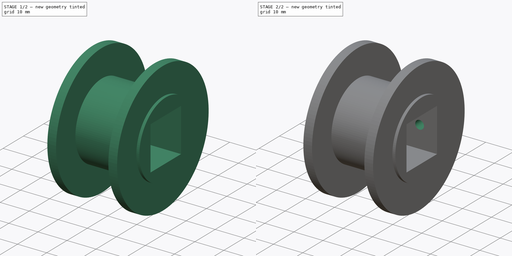
[diagram: build sequence overview — one tinted view per stage of 2, left to right]
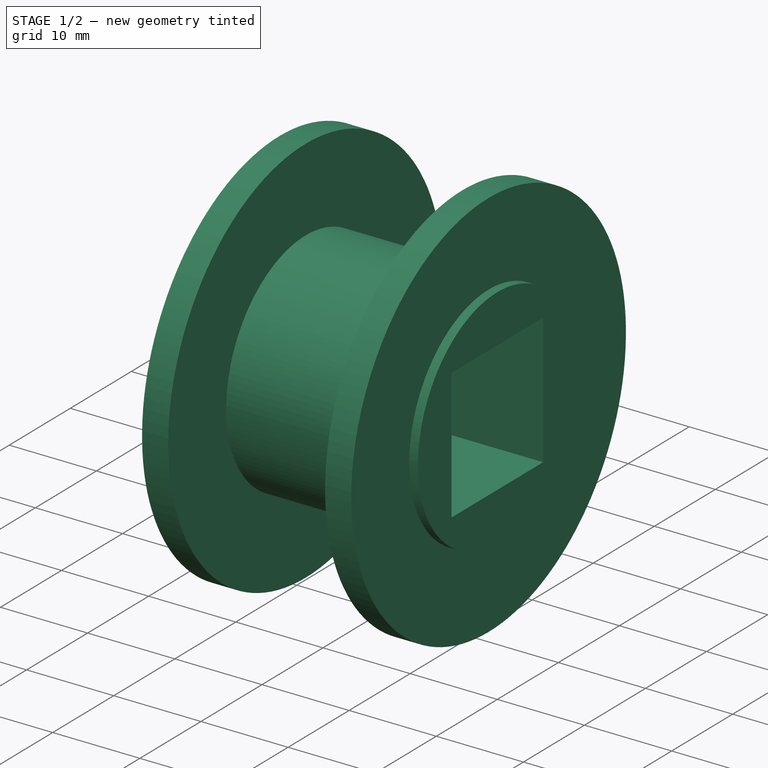
[diagram: stage 1 of 2 — iso view after this stage's code; geometry added in this stage tinted green]
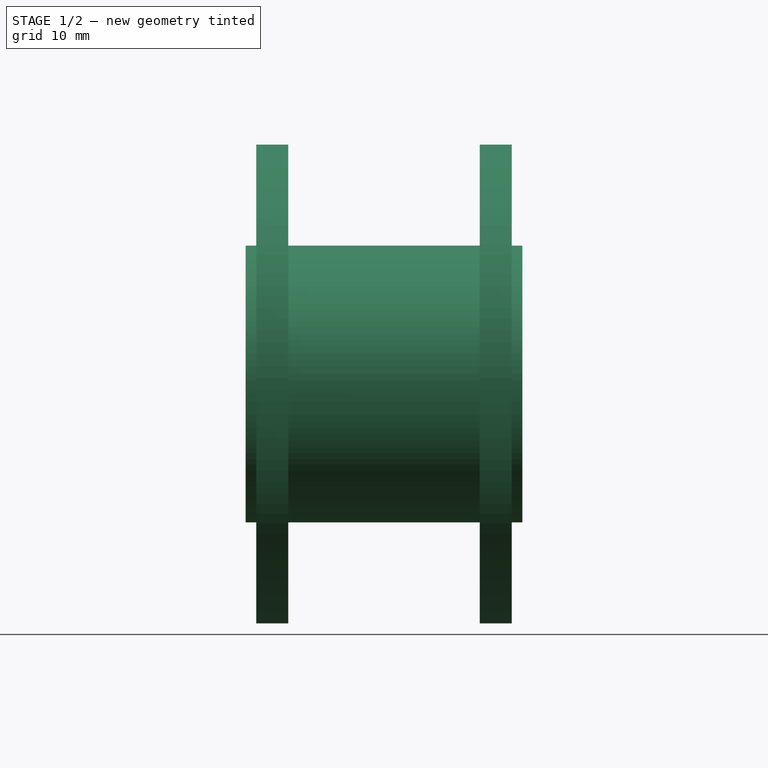
[diagram: stage 1 of 2 — front view after this stage's code; geometry added in this stage tinted green]
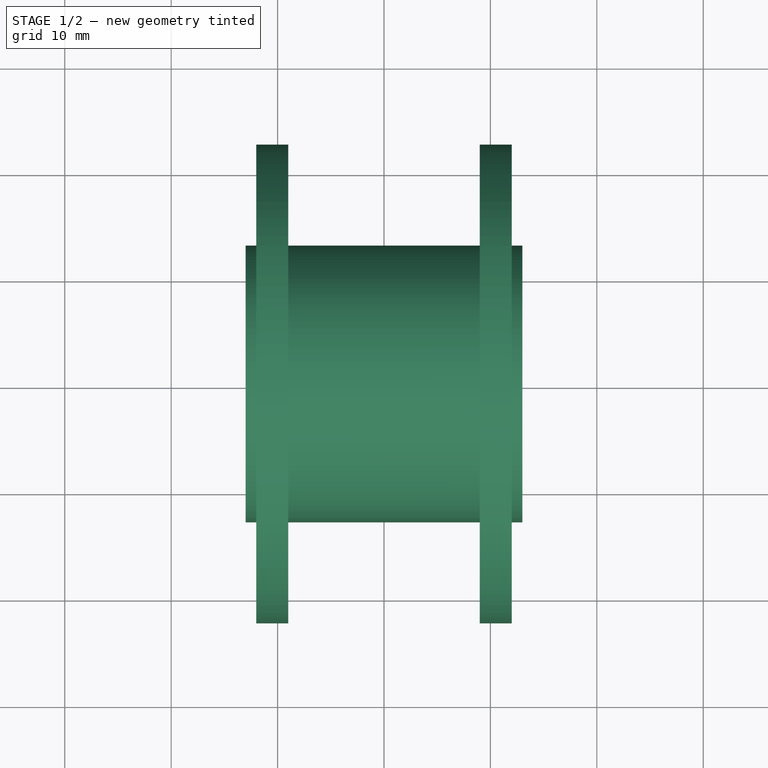
[diagram: stage 1 of 2 — top view after this stage's code; geometry added in this stage tinted green]
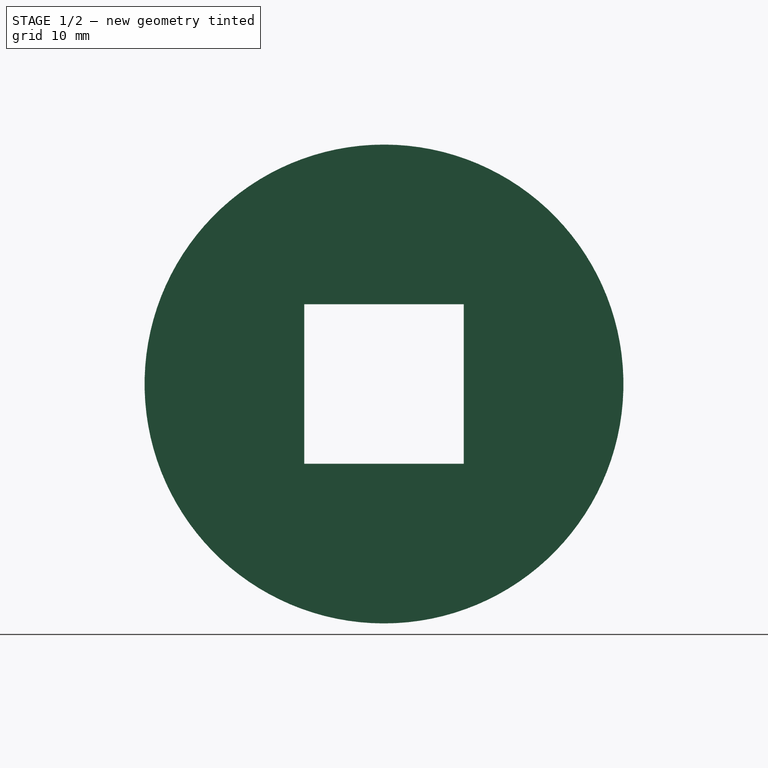
[diagram: stage 1 of 2 — right view after this stage's code; geometry added in this stage tinted green]
FCSTD DOCUMENT  (FreeCAD 0.16RUnknown)
Label: carrete
License: All rights reserved
LicenseURL: http://en.wikipedia.org/wiki/All_rights_reserved
objects: Sketcher::SketchObject×3, PartDesign::Pocket×2, PartDesign::Revolution×1
note: 9 computed .brp shape members not serialized (recipe doc carries the construction recipe); baked Part::Feature solids carry a one-line shape summary decoded from their .brp

FEATURE [Sketcher::SketchObject] Sketch
  Placement = pos=(0,0,0) rot=(-1,0,0;4.71239rad)
  sketch-geometry (12):
    g0: LineSegment StartX=-12 StartY=-13 StartZ=0 EndX=-12 EndY=-22.5 EndZ=0
    g1: LineSegment StartX=-12 StartY=-22.5 StartZ=0 EndX=-9 EndY=-22.5 EndZ=0
    g2: LineSegment StartX=-9 StartY=-22.5 StartZ=0 EndX=-9 EndY=-13 EndZ=0
    g3: LineSegment StartX=-9 StartY=-13 StartZ=0 EndX=9 EndY=-13 EndZ=0
    g4: LineSegment StartX=9 StartY=-13 StartZ=0 EndX=9 EndY=-22.5 EndZ=0
    g5: LineSegment StartX=9 StartY=-22.5 StartZ=0 EndX=12 EndY=-22.5 EndZ=0
    g6: LineSegment StartX=12 StartY=-22.5 StartZ=0 EndX=12 EndY=-13 EndZ=0
    g7: LineSegment StartX=12 StartY=-13 StartZ=0 EndX=13 EndY=-13 EndZ=0
    g8: LineSegment StartX=13 StartY=-13 StartZ=0 EndX=13 EndY=0 EndZ=0
    g9: LineSegment StartX=13 StartY=0 StartZ=0 EndX=-13 EndY=0 EndZ=0
    g10: LineSegment StartX=-13 StartY=0 StartZ=0 EndX=-13 EndY=-13 EndZ=0
    g11: LineSegment StartX=-13 StartY=-13 StartZ=0 EndX=-12 EndY=-13 EndZ=0
  constraints (36):
    c: Vertical(g0)
    c: Coincident(g0,g1)
    c: Coincident(g1,g2)
    c: Vertical(g2)
    c: Coincident(g2,g3)
    c: Horizontal(g3)
    c: Coincident(g3,g4)
    c: Vertical(g4)
    c: Coincident(g4,g5)
    c: Coincident(g5,g6)
    c: Vertical(g6)
    c: Coincident(g6,g7)
    c: Horizontal(g7)
    c: Coincident(g7,g8)
    c: PointOnObject(g8,g-1)
    c: Vertical(g8)
    c: Coincident(g8,g9)
    c: PointOnObject(g9,g-1)
    c: Coincident(g9,g10)
    c: Vertical(g10)
    c: Coincident(g10,g11)
    c: Coincident(g11,g0)
    c: Symmetric(g3,g2,g-2)
    c: Horizontal(g11)
    c: Horizontal(g1)
    c: DistanceX(g9,g9) = 26
    c: Symmetric(g8,g9,g-2)
    c: DistanceX(g2,g3) = 18
    c: DistanceY(g10,g9) = 13
    c: Horizontal(g5)
    c: DistanceY(g1,g-1) = 22.5
    c: DistanceY(g5,g-1) = 22.5
    c: DistanceX(g11,g11) = 1
    c: DistanceX(g7,g7) = 1
    c: DistanceY(g0,g2) = 0
    c: DistanceY(g3,g6) = 0
FEATURE [PartDesign::Revolution] Revolution
  Angle = 360
  Axis = (1,0,0)
  Base = (0,0,0)
  Placement = pos=(0,0,0) rot=(-1,0,0;4.71239rad)
  ReferenceAxis = -> Sketch [H_Axis]
  Reversed = true
  Sketch = -> Sketch
FEATURE [Sketcher::SketchObject] Sketch001
  Placement = pos=(13,0,0) rot=(0.707107,0,0.707107;3.14159rad)
  Support = -> Revolution [Face9]
  sketch-geometry (4):
    g0: LineSegment StartX=-7.5 StartY=7.5 StartZ=0 EndX=7.5 EndY=7.5 EndZ=0
    g1: LineSegment StartX=7.5 StartY=7.5 StartZ=0 EndX=7.5 EndY=-7.5 EndZ=0
    g2: LineSegment StartX=7.5 StartY=-7.5 StartZ=0 EndX=-7.5 EndY=-7.5 EndZ=0
    g3: LineSegment StartX=-7.5 StartY=-7.5 StartZ=0 EndX=-7.5 EndY=7.5 EndZ=0
  constraints (12):
    c: Coincident(g0,g1)
    c: Coincident(g1,g2)
    c: Coincident(g2,g3)
    c: Coincident(g3,g0)
    c: Horizontal(g0)
    c: Horizontal(g2)
    c: Vertical(g1)
    c: Vertical(g3)
    c: Symmetric(g1,g2,g-2)
    c: Symmetric(g1,g0,g-1)
    c: DistanceX(g0,g0) = 15
    c: DistanceY(g3,g3) = 15
FEATURE [PartDesign::Pocket] Pocket
  Length = 5
  Placement = pos=(0,0,0) rot=(-1,0,0;4.71239rad)
  Sketch = -> Sketch001
  Type = 1
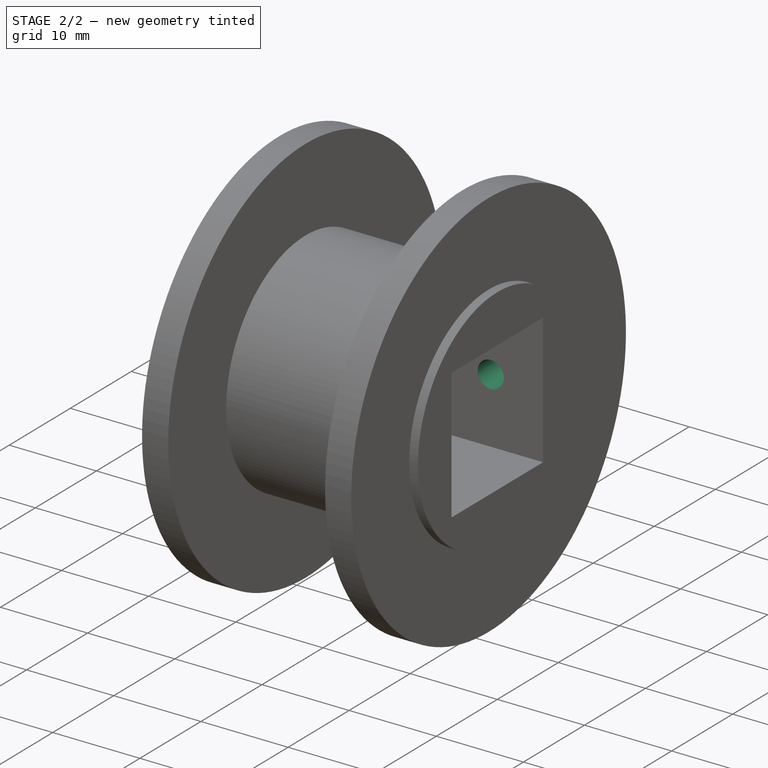
[diagram: stage 2 of 2 — iso view after this stage's code; geometry added in this stage tinted green]
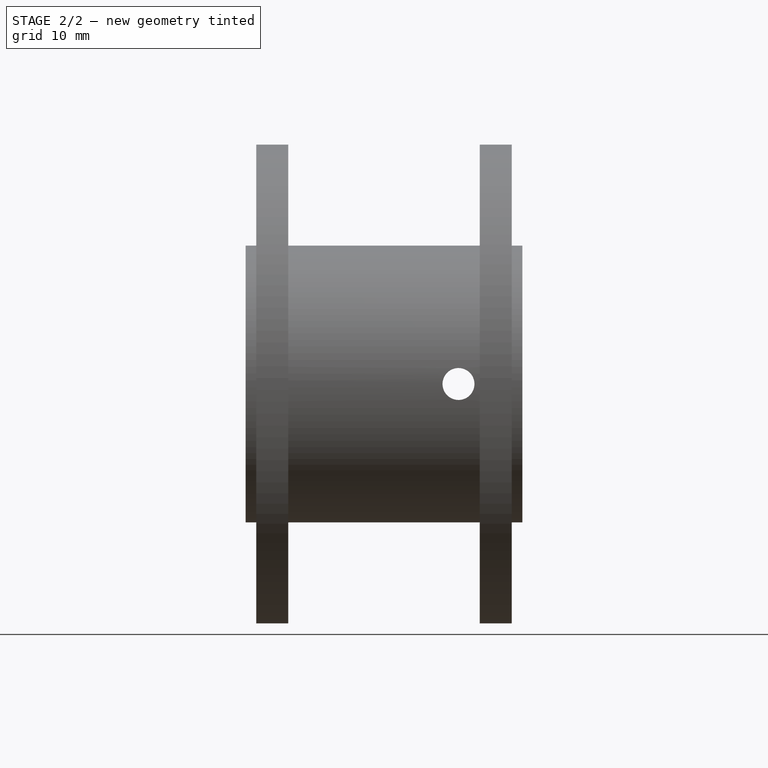
[diagram: stage 2 of 2 — front view after this stage's code; geometry added in this stage tinted green]
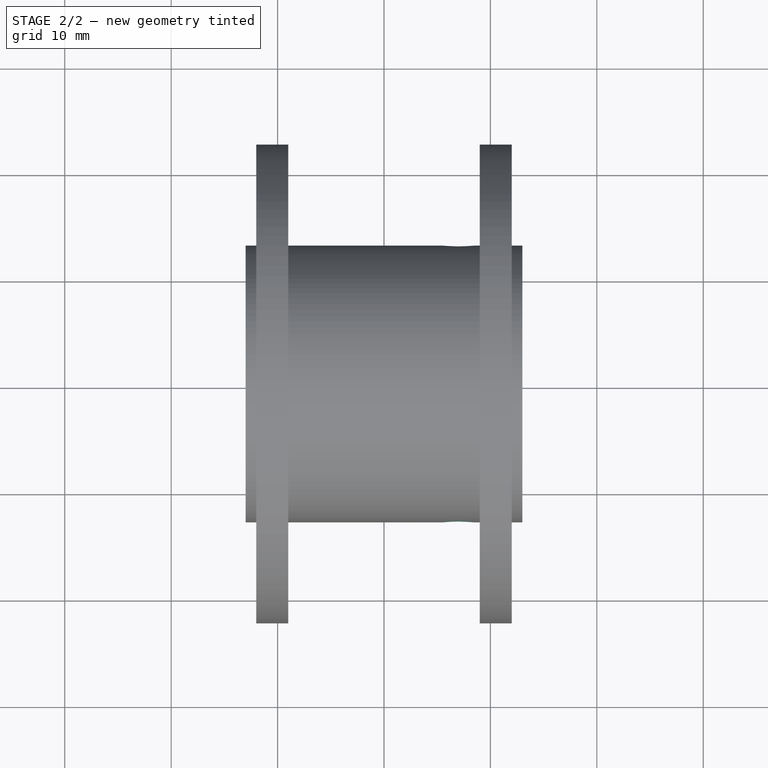
[diagram: stage 2 of 2 — top view after this stage's code; geometry added in this stage tinted green]
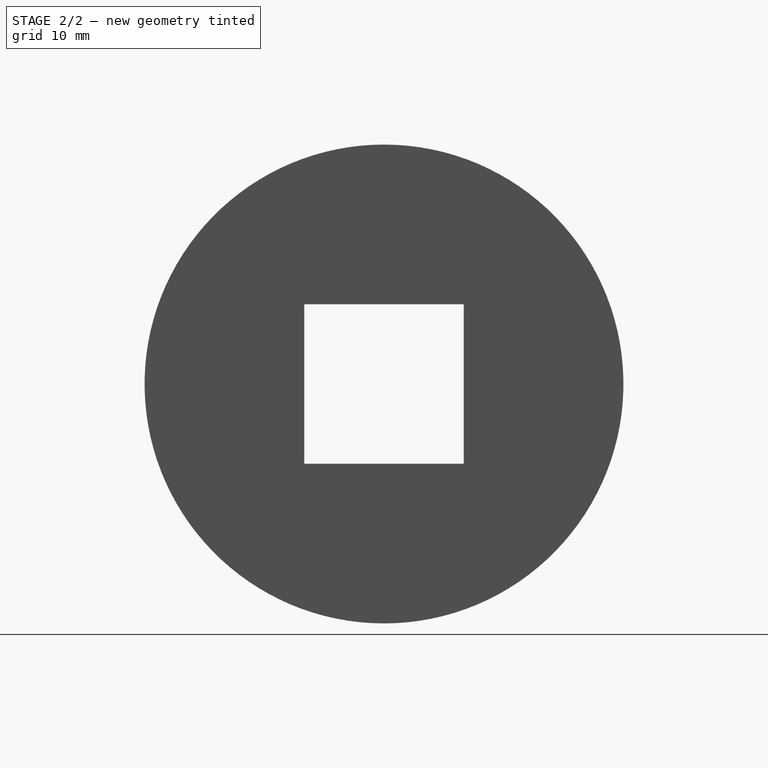
[diagram: stage 2 of 2 — right view after this stage's code; geometry added in this stage tinted green]
FEATURE [Sketcher::SketchObject] Sketch002
  Placement = pos=(0,7.5,0) rot=(1,0,0;1.5708rad)
  Support = -> Pocket [Face8]
  sketch-geometry (1):
    g0: Circle CenterX=7 CenterY=0 CenterZ=0 NormalX=0 NormalY=0 NormalZ=1 Radius=1.5
  constraints (3):
    c: PointOnObject(g0,g-1)
    c: Radius(g0) = 1.5
    c: DistanceX(g-1,g0) = 7
FEATURE [PartDesign::Pocket] Pocket001
  Length = 5
  Midplane = true
  Placement = pos=(0,0,0) rot=(-1,0,0;4.71239rad)
  Sketch = -> Sketch002
  Type = 1
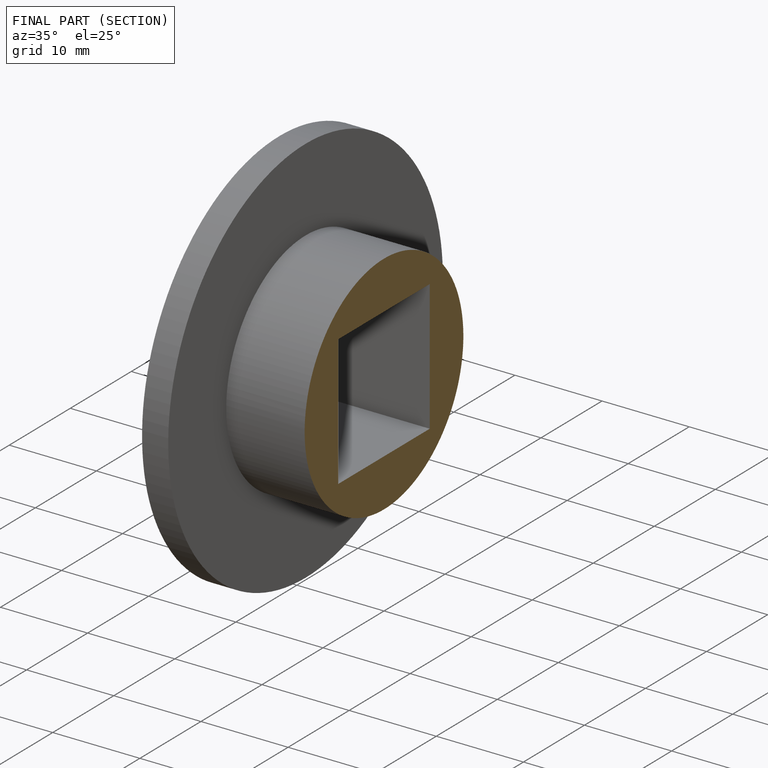
[diagram: finished part — half-section view (interior)]
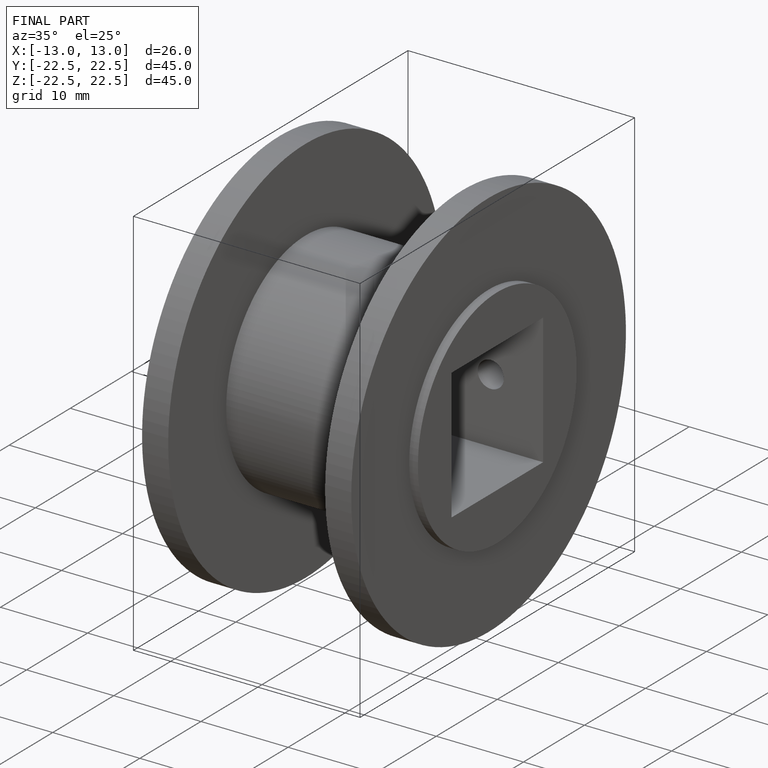
[diagram: finished part — iso view with bounding-box wireframe]
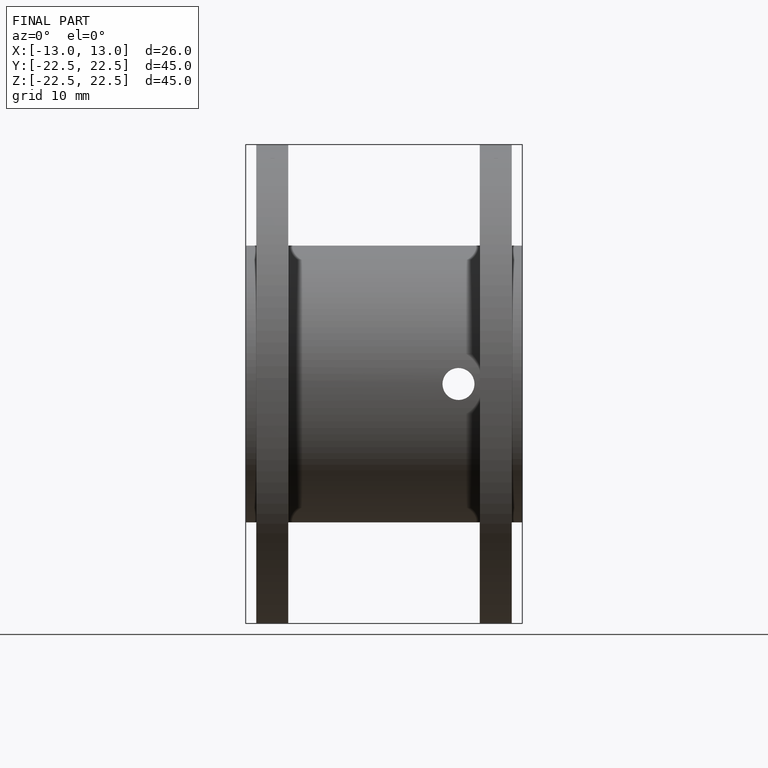
[diagram: finished part — front view with bounding-box wireframe]
